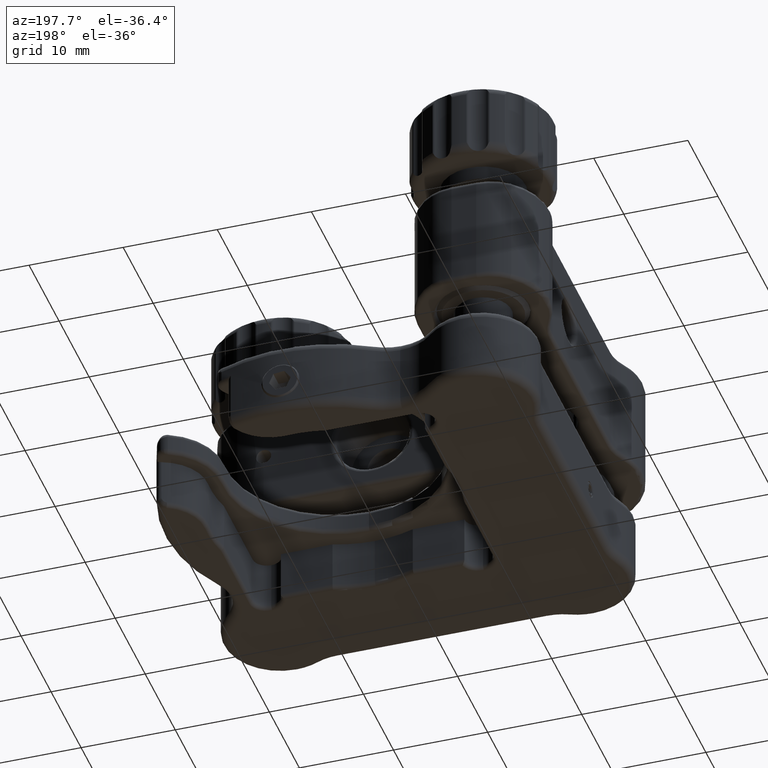
[diagram: clean part render]
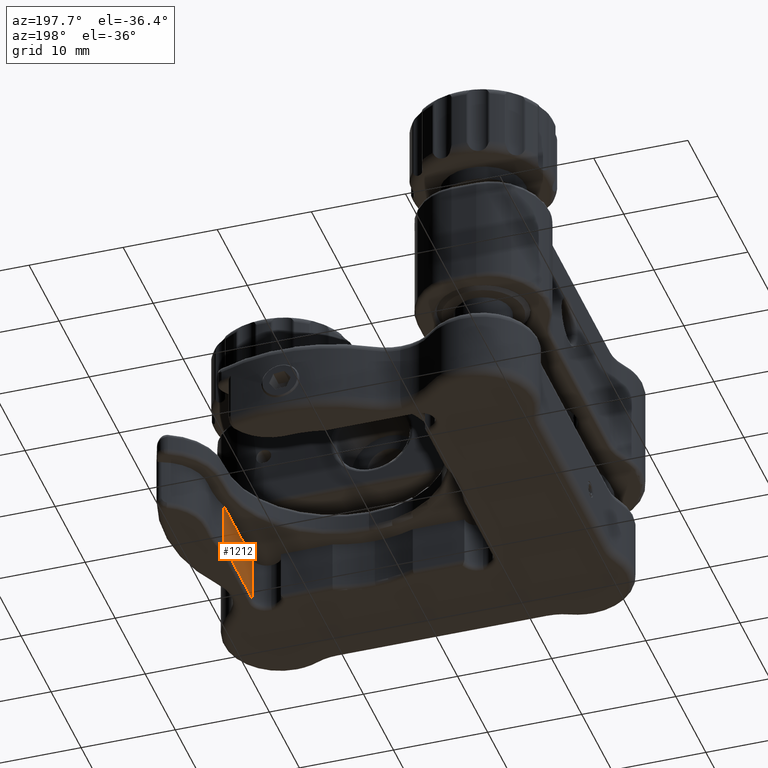
[diagram: same view with one face highlighted and labeled with its STEP entity id]
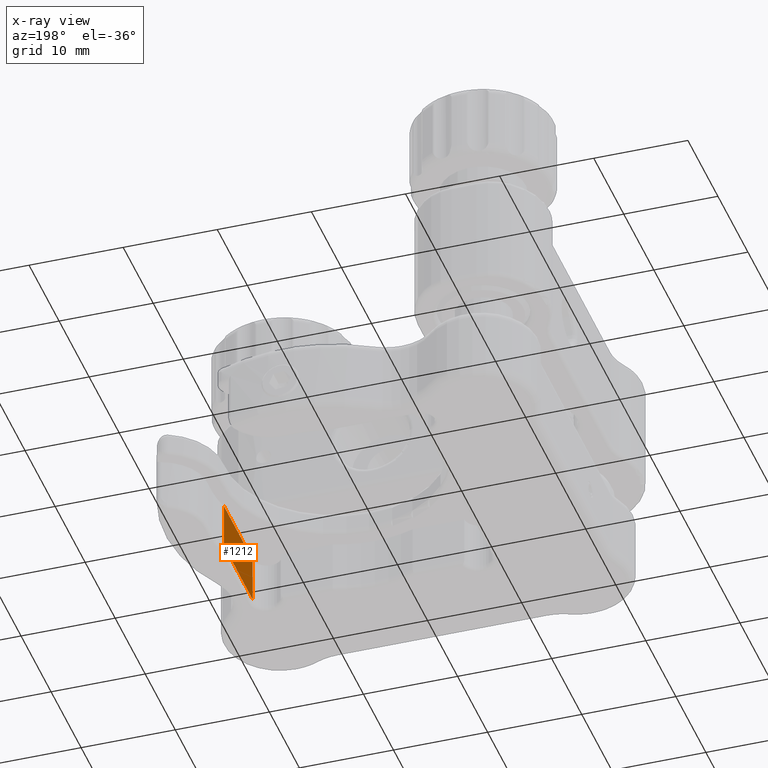
[diagram: x-ray of the same camera — body ghosted, the highlighted face saturated]
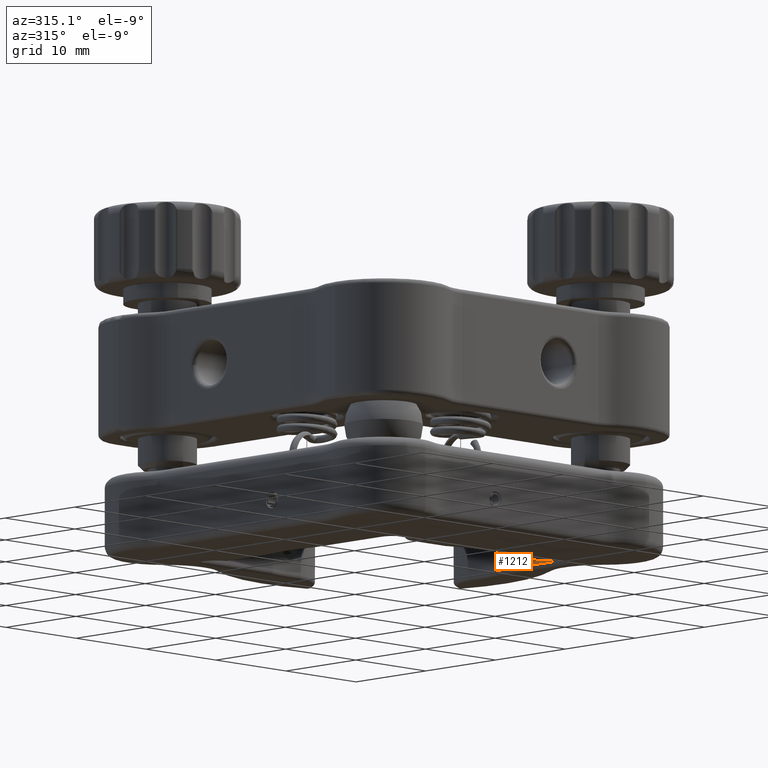
[diagram: same view with one face highlighted and labeled with its STEP entity id]
A machine part, auxiliary view. The second image highlights one B-rep face of the part: STEP entity #1212.
The next image is the same camera in x-ray: the body ghosted, the highlighted face saturated — about 0% of this face is hidden behind the body in this view.
A second angle (auxiliary view) of the same face is appended — the face is thin or edge-on in the first view.
In plain terms, the highlighted planar face has unit normal (1, -0, -0).
Its self-contained STEP definition (entity closure, byte-faithful):
#1212 = ADVANCED_FACE ( 'NONE', ( #14900 ), #9318, .F. ) ;
#1504 = CARTESIAN_POINT ( 'NONE',  ( 56.43022454005429700, 32.24999999999997200, -12.50000000000000500 ) ) ;
#1510 = EDGE_CURVE ( 'NONE', #3468, #21346, #21919, .T. ) ;
#2054 = ORIENTED_EDGE ( 'NONE', *, *, #22386, .F. ) ;
#2629 = CARTESIAN_POINT ( 'NONE',  ( 56.43022454005428300, 16.28130461211375700, -17.50000000000000700 ) ) ;
#2716 = VECTOR ( 'NONE', #23275, 1000.000000000000000 ) ;
#3270 = ORIENTED_EDGE ( 'NONE', *, *, #24506, .T. ) ;
#3468 = VERTEX_POINT ( 'NONE', #19357 ) ;
#3825 = DIRECTION ( 'NONE',  ( 1.499016184292483500E-016, 1.000000000000000000, 1.942890293094023900E-016 ) ) ;
#4289 = EDGE_CURVE ( 'NONE', #17620, #21346, #5541, .T. ) ;
#4870 = ORIENTED_EDGE ( 'NONE', *, *, #1510, .F. ) ;
#5259 = CARTESIAN_POINT ( 'NONE',  ( 56.43022454005428300, 6.749999999999979600, -17.50000000000000000 ) ) ;
#5541 = LINE ( 'NONE', #21319, #2716 ) ;
#5724 = DIRECTION ( 'NONE',  ( -2.644345997068941500E-016, 1.942890293094024200E-016, -1.000000000000000000 ) ) ;
#7101 = CARTESIAN_POINT ( 'NONE',  ( 56.43022454005431100, 32.24999999999996400, 26.75875698490719000 ) ) ;
#8783 = DIRECTION ( 'NONE',  ( 2.644345997068941500E-016, -1.942890293094024400E-016, 1.000000000000000000 ) ) ;
#9040 = CARTESIAN_POINT ( 'NONE',  ( 56.43022454005428300, 16.28130461211375700, -12.50000000000001100 ) ) ;
#9318 = PLANE ( 'NONE',  #16433 ) ;
#10719 = VECTOR ( 'NONE', #5724, 1000.000000000000000 ) ;
#12174 = CARTESIAN_POINT ( 'NONE',  ( 56.43022454005428300, 16.28130461211375700, -12.50000000000001100 ) ) ;
#13654 = VERTEX_POINT ( 'NONE', #12174 ) ;
#14900 = FACE_OUTER_BOUND ( 'NONE', #16624, .T. ) ;
#15826 = ORIENTED_EDGE ( 'NONE', *, *, #4289, .T. ) ;
#16433 = AXIS2_PLACEMENT_3D ( 'NONE', #7101, #25588, #21433 ) ;
#16624 = EDGE_LOOP ( 'NONE', ( #2054, #15826, #4870, #3270 ) ) ;
#17620 = VERTEX_POINT ( 'NONE', #2629 ) ;
#17993 = CARTESIAN_POINT ( 'NONE',  ( 56.43022454005429700, 6.749999999999971600, 26.75875698490718700 ) ) ;
#18852 = VECTOR ( 'NONE', #3825, 1000.000000000000000 ) ;
#19357 = CARTESIAN_POINT ( 'NONE',  ( 56.43022454005428300, 6.749999999999979600, -12.50000000000001100 ) ) ;
#20115 = LINE ( 'NONE', #1504, #18852 ) ;
#21319 = CARTESIAN_POINT ( 'NONE',  ( 56.43022454005428300, 6.749999999999979600, -17.50000000000001400 ) ) ;
#21346 = VERTEX_POINT ( 'NONE', #5259 ) ;
#21433 = DIRECTION ( 'NONE',  ( -2.644345997068941900E-016, 1.942890293094024200E-016, -1.000000000000000000 ) ) ;
#21919 = LINE ( 'NONE', #17993, #10719 ) ;
#22133 = LINE ( 'NONE', #9040, #25930 ) ;
#22386 = EDGE_CURVE ( 'NONE', #17620, #13654, #22133, .T. ) ;
#23275 = DIRECTION ( 'NONE',  ( -1.499016184292483500E-016, -1.000000000000000000, -1.942890293094023900E-016 ) ) ;
#24506 = EDGE_CURVE ( 'NONE', #3468, #13654, #20115, .T. ) ;
#25588 = DIRECTION ( 'NONE',  ( 1.000000000000000000, -1.499016184292483500E-016, -2.644345997068942400E-016 ) ) ;
#25930 = VECTOR ( 'NONE', #8783, 1000.000000000000000 ) ;